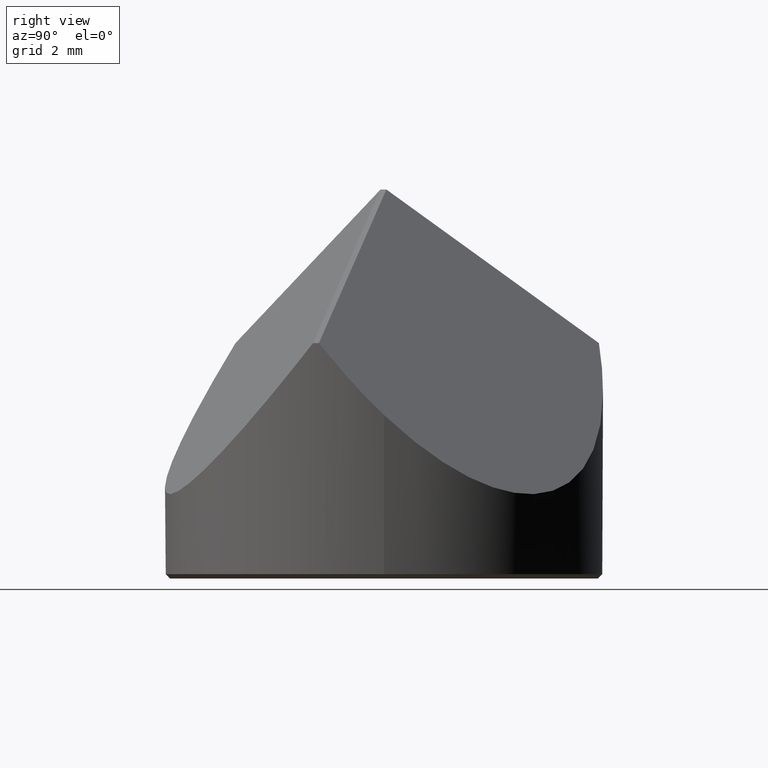
[diagram: clean part render]
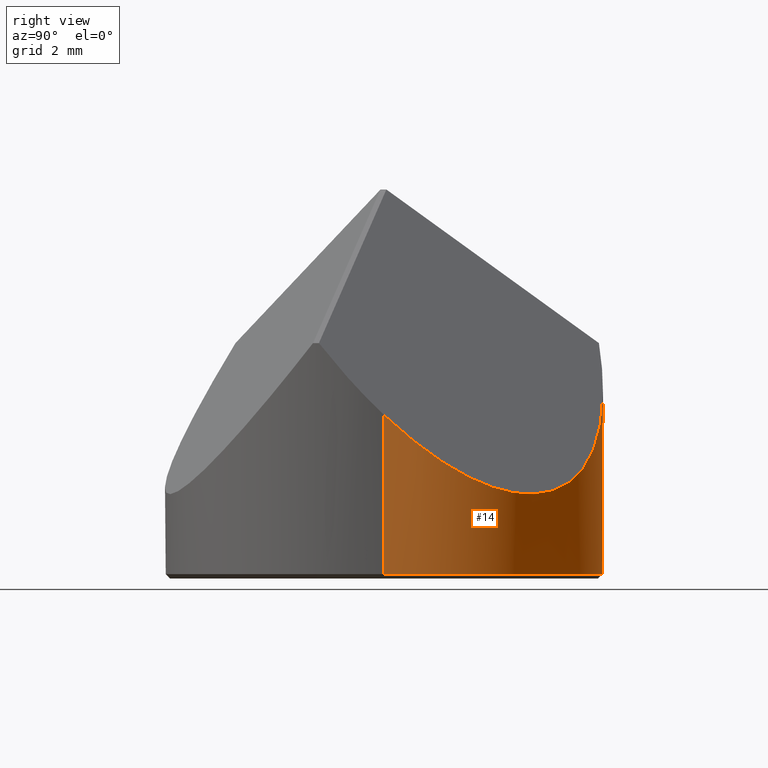
[diagram: same view with one face highlighted and labeled with its STEP entity id]
A machine part, right view. The second image highlights one B-rep face of the part: STEP entity #14.
In plain terms, the highlighted cylindrical surface (partial cylindrical patch) has radius 5 mm, axis along (-0, -0, -1).
Its self-contained STEP definition (entity closure, byte-faithful):
#3 = CARTESIAN_POINT ( 'NONE',  ( -5.000000000000000000, 0.000000000000000000, 1.814394517940242313 ) ) ;
#14 = ADVANCED_FACE ( 'NONE', ( #278 ), #67, .T. ) ;
#15 = DIRECTION ( 'NONE',  ( -1.000000000000000000, 0.000000000000000000, 0.000000000000000000 ) ) ;
#32 = CARTESIAN_POINT ( 'NONE',  ( 4.999999999999998224, 3.399973796034752027, 0.06131317339008388045 ) ) ;
#35 = DIRECTION ( 'NONE',  ( 0.000000000000000000, 0.000000000000000000, 1.000000000000000000 ) ) ;
#48 = VECTOR ( 'NONE', #145, 1000.000000000000000 ) ;
#56 = ORIENTED_EDGE ( 'NONE', *, *, #68, .T. ) ;
#62 = EDGE_CURVE ( 'NONE', #358, #225, #197, .T. ) ;
#67 = CYLINDRICAL_SURFACE ( 'NONE', #329, 5.000000000000000000 ) ;
#68 = EDGE_CURVE ( 'NONE', #335, #204, #345, .T. ) ;
#75 = VERTEX_POINT ( 'NONE', #298 ) ;
#83 = EDGE_CURVE ( 'NONE', #335, #315, #146, .T. ) ;
#84 = CARTESIAN_POINT ( 'NONE',  ( -0.9616780810028860982, 4.906646030489524968, 4.913751030691584809 ) ) ;
#111 = CARTESIAN_POINT ( 'NONE',  ( -1.100060438227439485, 4.877485728553889288, 4.913751030691609678 ) ) ;
#114 = CARTESIAN_POINT ( 'NONE',  ( 5.000000000000000000, 6.123233995736766282E-16, 3.272409614722002758 ) ) ;
#118 =( BOUNDED_CURVE ( )  B_SPLINE_CURVE ( 3, ( #276, #243, #125, #325 ),
 .UNSPECIFIED., .F., .T. ) 
 B_SPLINE_CURVE_WITH_KNOTS ( ( 4, 4 ),
 ( 6.269042700108901300, 6.297327914250268499 ),
 .UNSPECIFIED. ) 
 CURVE ( )  GEOMETRIC_REPRESENTATION_ITEM ( )  RATIONAL_B_SPLINE_CURVE ( ( 1.000000000000000000, 0.9999333299996664426, 0.9999333299996664426, 1.000000000000000000 ) ) 
 REPRESENTATION_ITEM ( '' )  );
#120 = DIRECTION ( 'NONE',  ( -1.000000000000000000, 0.000000000000000000, 0.000000000000000000 ) ) ;
#125 = CARTESIAN_POINT ( 'NONE',  ( -1.007941467796784396, 4.897578638067860091, 4.913279594740163070 ) ) ;
#127 = DIRECTION ( 'NONE',  ( -0.000000000000000000, -0.000000000000000000, -1.000000000000000000 ) ) ;
#145 = DIRECTION ( 'NONE',  ( -0.000000000000000000, -0.000000000000000000, -1.000000000000000000 ) ) ;
#146 =( BOUNDED_CURVE ( )  B_SPLINE_CURVE ( 3, ( #114, #32, #235, #84 ),
 .UNSPECIFIED., .F., .T. ) 
 B_SPLINE_CURVE_WITH_KNOTS ( ( 4, 4 ),
 ( 5.551902276905597233, 7.316240251305500486 ),
 .UNSPECIFIED. ) 
 CURVE ( )  GEOMETRIC_REPRESENTATION_ITEM ( )  RATIONAL_B_SPLINE_CURVE ( ( 1.000000000000000000, 0.7569852826710528060, 0.7569852826710528060, 1.000000000000000000 ) ) 
 REPRESENTATION_ITEM ( '' )  );
#149 = EDGE_CURVE ( 'NONE', #204, #75, #366, .T. ) ;
#156 = CARTESIAN_POINT ( 'NONE',  ( -5.000000000000000000, 0.000000000000000000, 1.814394517940242313 ) ) ;
#158 = CARTESIAN_POINT ( 'NONE',  ( 5.000000000000000000, 6.123233995736766282E-16, -0.3600000000000000977 ) ) ;
#163 = CARTESIAN_POINT ( 'NONE',  ( 0.000000000000000000, 0.000000000000000000, 5.000000000000000000 ) ) ;
#174 = CARTESIAN_POINT ( 'NONE',  ( 0.000000000000000000, 0.000000000000000000, -0.3600000000000000977 ) ) ;
#197 =( BOUNDED_CURVE ( )  B_SPLINE_CURVE ( 3, ( #321, #237, #346, #3 ),
 .UNSPECIFIED., .F., .F. ) 
 B_SPLINE_CURVE_WITH_KNOTS ( ( 4, 4 ),
 ( 5.250130363053667537, 6.599099828102189313 ),
 .UNSPECIFIED. ) 
 CURVE ( )  GEOMETRIC_REPRESENTATION_ITEM ( )  RATIONAL_B_SPLINE_CURVE ( ( 1.000000000000000000, 0.8540192244947443223, 0.8540192244947443223, 1.000000000000000000 ) ) 
 REPRESENTATION_ITEM ( '' )  );
#198 = ORIENTED_EDGE ( 'NONE', *, *, #311, .F. ) ;
#199 = DIRECTION ( 'NONE',  ( -0.000000000000000000, -0.000000000000000000, -1.000000000000000000 ) ) ;
#204 = VERTEX_POINT ( 'NONE', #158 ) ;
#207 = CARTESIAN_POINT ( 'NONE',  ( -0.9616780810028860982, 4.906646030489524968, 4.913751030691584809 ) ) ;
#212 = EDGE_CURVE ( 'NONE', #358, #315, #118, .T. ) ;
#225 = VERTEX_POINT ( 'NONE', #156 ) ;
#227 = ORIENTED_EDGE ( 'NONE', *, *, #149, .T. ) ;
#235 = CARTESIAN_POINT ( 'NONE',  ( 2.374815505013576189, 5.560582085615683567, 0.7840667299621245645 ) ) ;
#237 = CARTESIAN_POINT ( 'NONE',  ( -3.477809612900359504, 4.341211929991462881, 1.953140228378772880 ) ) ;
#243 = CARTESIAN_POINT ( 'NONE',  ( -1.054071995727281941, 4.887857889340327944, 4.913279594740163070 ) ) ;
#261 = CARTESIAN_POINT ( 'NONE',  ( 5.000000000000000000, 6.123233995736766282E-16, 3.272409614722002758 ) ) ;
#276 = CARTESIAN_POINT ( 'NONE',  ( -1.100060438227439485, 4.877485728553889288, 4.913751030691609678 ) ) ;
#278 = FACE_OUTER_BOUND ( 'NONE', #354, .T. ) ;
#280 = ORIENTED_EDGE ( 'NONE', *, *, #62, .F. ) ;
#292 = LINE ( 'NONE', #338, #336 ) ;
#295 = CARTESIAN_POINT ( 'NONE',  ( 5.000000000000000000, 6.123233995736766282E-16, 5.000000000000000000 ) ) ;
#296 = AXIS2_PLACEMENT_3D ( 'NONE', #174, #35, #120 ) ;
#298 = CARTESIAN_POINT ( 'NONE',  ( -5.000000000000000000, 0.000000000000000000, -0.3600000000000000977 ) ) ;
#311 = EDGE_CURVE ( 'NONE', #225, #75, #292, .T. ) ;
#315 = VERTEX_POINT ( 'NONE', #207 ) ;
#321 = CARTESIAN_POINT ( 'NONE',  ( -1.100060438227439485, 4.877485728553889288, 4.913751030691609678 ) ) ;
#325 = CARTESIAN_POINT ( 'NONE',  ( -0.9616780810028860982, 4.906646030489524968, 4.913751030691584809 ) ) ;
#329 = AXIS2_PLACEMENT_3D ( 'NONE', #163, #127, #15 ) ;
#335 = VERTEX_POINT ( 'NONE', #261 ) ;
#336 = VECTOR ( 'NONE', #199, 1000.000000000000000 ) ;
#337 = ORIENTED_EDGE ( 'NONE', *, *, #83, .F. ) ;
#338 = CARTESIAN_POINT ( 'NONE',  ( -5.000000000000000000, 0.000000000000000000, 5.000000000000000000 ) ) ;
#345 = LINE ( 'NONE', #295, #48 ) ;
#346 = CARTESIAN_POINT ( 'NONE',  ( -4.999999999999998224, 2.437474251080893772, 0.7434264327730533140 ) ) ;
#354 = EDGE_LOOP ( 'NONE', ( #337, #56, #227, #198, #280, #356 ) ) ;
#356 = ORIENTED_EDGE ( 'NONE', *, *, #212, .T. ) ;
#358 = VERTEX_POINT ( 'NONE', #111 ) ;
#366 = CIRCLE ( 'NONE', #296, 5.000000000000000000 ) ;